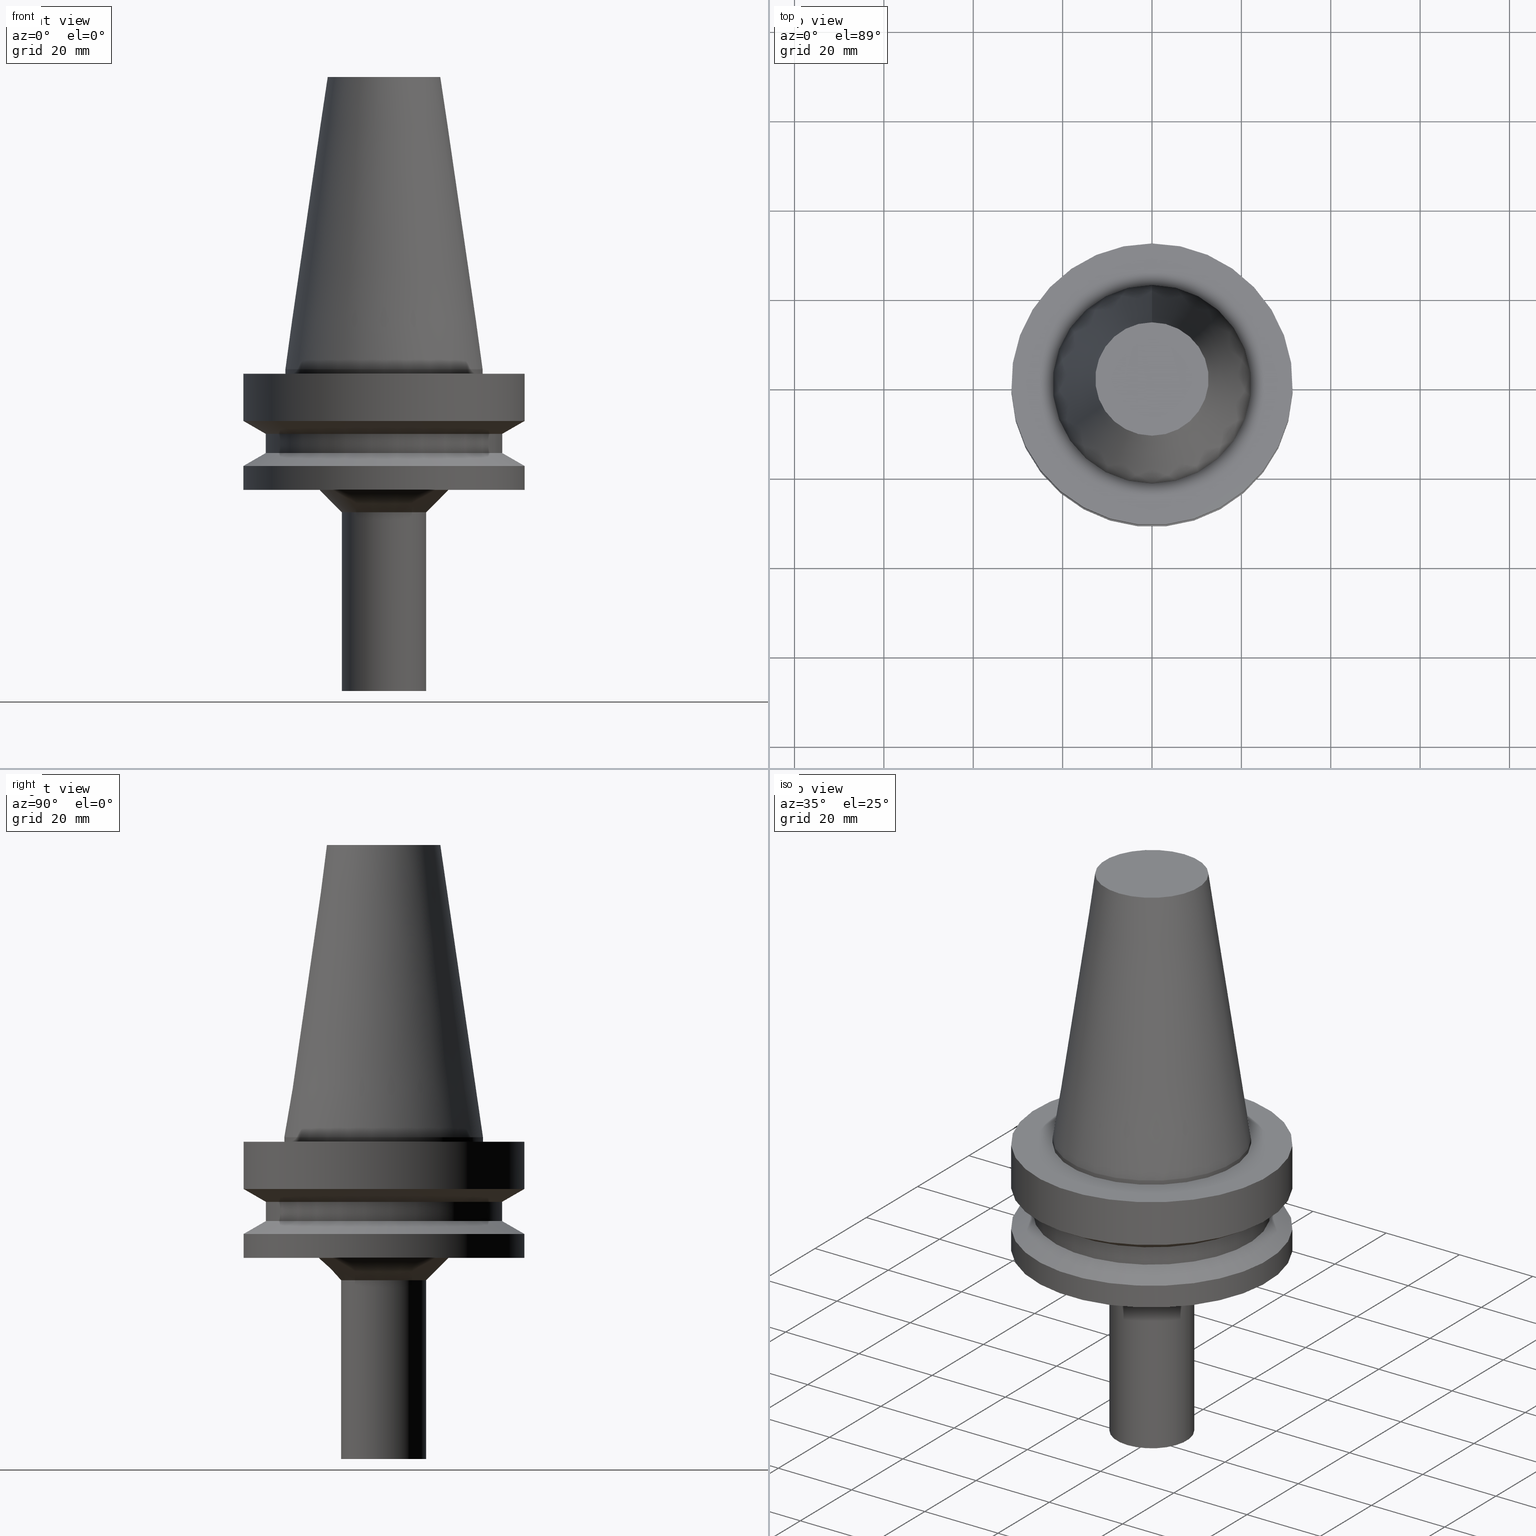
[diagram: canonical four-view strip — front | top / right | iso, engineering-drawing reading convention]
A machine part, canonical four-view strip (front | top / right | iso — engineering-drawing reading convention). The complete STEP part file that produces these views, byte-faithful:
ISO-10303-21;
HEADER;
FILE_DESCRIPTION((''),'1');
FILE_NAME('U:/Translate/21_DXF\X2\30C730FC30BF4F5C621057FA6E96\X0\/BBT40-CK1-105.stp','2016-12-09T00:20:59',(''),(''),'Spatial Interop R21 SP3','Kubotek KeyCreator 2011 V10.0.2 (22737)',' ');
FILE_SCHEMA(('automotive_design'));
ENDSEC;
DATA;
#1=MECHANICAL_DESIGN_GEOMETRIC_PRESENTATION_REPRESENTATION(' ',(#10,#11,#12,#13,#14,#15,#16,#17,#18,#19,#20,#21,#22,#23,#24,#25,#26,#27,#28,#29,#30,#31,#32,#33,#34,#35),#6);
#2=PRODUCT_DEFINITION_CONTEXT('',#36,'design');
#3=APPLICATION_PROTOCOL_DEFINITION('INTERNATIONAL STANDARD','automotive_design',1994,#36);
#4=PRODUCT_CATEGORY_RELATIONSHIP('NONE','NONE',#37,#38);
#5=SHAPE_DEFINITION_REPRESENTATION(#39,#40);
#6= (GEOMETRIC_REPRESENTATION_CONTEXT(3)GLOBAL_UNCERTAINTY_ASSIGNED_CONTEXT((#43))GLOBAL_UNIT_ASSIGNED_CONTEXT((#45,#46,#47))REPRESENTATION_CONTEXT('NONE','WORKSPACE'));
#10=STYLED_ITEM('',(#49,#50),#51);
#11=STYLED_ITEM('',(#52,#53),#54);
#12=STYLED_ITEM('',(#55),#56);
#13=STYLED_ITEM('',(#57),#58);
#14=STYLED_ITEM('',(#59),#60);
#15=STYLED_ITEM('',(#61,#62),#63);
#16=STYLED_ITEM('',(#64),#65);
#17=STYLED_ITEM('',(#66),#67);
#18=STYLED_ITEM('',(#68),#69);
#19=STYLED_ITEM('',(#70,#71),#72);
#20=STYLED_ITEM('',(#73,#74),#75);
#21=STYLED_ITEM('',(#76),#77);
#22=STYLED_ITEM('',(#78,#79),#80);
#23=STYLED_ITEM('',(#81,#82),#83);
#24=STYLED_ITEM('',(#84,#85),#86);
#25=STYLED_ITEM('',(#87),#88);
#26=STYLED_ITEM('',(#89),#90);
#27=STYLED_ITEM('',(#91),#92);
#28=STYLED_ITEM('',(#93,#94),#95);
#29=STYLED_ITEM('',(#96,#97),#98);
#30=STYLED_ITEM('',(#99,#100),#101);
#31=STYLED_ITEM('',(#102,#103),#104);
#32=STYLED_ITEM('',(#105),#106);
#33=STYLED_ITEM('',(#107),#108);
#34=STYLED_ITEM('',(#109,#110),#111);
#35=STYLED_ITEM('',(#112,#113),#114);
#36=APPLICATION_CONTEXT(' ');
#37=PRODUCT_CATEGORY('part','NONE');
#38=PRODUCT_RELATED_PRODUCT_CATEGORY('detail',' ',(#115));
#39=PRODUCT_DEFINITION_SHAPE('NONE','NONE',#116);
#40=ADVANCED_BREP_SHAPE_REPRESENTATION('Unnamed[1]',(#80,#117),#6);
#43=UNCERTAINTY_MEASURE_WITH_UNIT(LENGTH_MEASURE(1.0E-006),#45,'','');
#45= (CONVERSION_BASED_UNIT('MILLIMETRE',#120)LENGTH_UNIT()NAMED_UNIT(#123));
#46= (NAMED_UNIT(#125)PLANE_ANGLE_UNIT()SI_UNIT($,.RADIAN.));
#47= (NAMED_UNIT(#125)SOLID_ANGLE_UNIT()SI_UNIT($,.STERADIAN.));
#49=PRESENTATION_STYLE_ASSIGNMENT((#131));
#50=PRESENTATION_STYLE_ASSIGNMENT((#132));
#51=ADVANCED_FACE('Unnamed[1]',(#133,#134),#135,.T.);
#52=PRESENTATION_STYLE_ASSIGNMENT((#136));
#53=PRESENTATION_STYLE_ASSIGNMENT((#137));
#54=ADVANCED_FACE('Unnamed[1]',(#138),#139,.T.);
#55=PRESENTATION_STYLE_ASSIGNMENT((#140));
#56=EDGE_CURVE('Unnamed[1]',#141,#141,#142,.T.);
#57=PRESENTATION_STYLE_ASSIGNMENT((#143));
#58=EDGE_CURVE('Unnamed[1]',#144,#144,#145,.T.);
#59=PRESENTATION_STYLE_ASSIGNMENT((#146));
#60=EDGE_CURVE('Unnamed[1]',#147,#147,#148,.T.);
#61=PRESENTATION_STYLE_ASSIGNMENT((#149));
#62=PRESENTATION_STYLE_ASSIGNMENT((#150));
#63=ADVANCED_FACE('Unnamed[1]',(#151,#152),#153,.T.);
#64=PRESENTATION_STYLE_ASSIGNMENT((#154));
#65=EDGE_CURVE('Unnamed[1]',#155,#155,#156,.T.);
#66=PRESENTATION_STYLE_ASSIGNMENT((#157));
#67=EDGE_CURVE('Unnamed[1]',#158,#158,#159,.T.);
#68=PRESENTATION_STYLE_ASSIGNMENT((#160));
#69=EDGE_CURVE('Unnamed[1]',#161,#161,#162,.T.);
#70=PRESENTATION_STYLE_ASSIGNMENT((#163));
#71=PRESENTATION_STYLE_ASSIGNMENT((#164));
#72=ADVANCED_FACE('Unnamed[1]',(#165,#166),#167,.T.);
#73=PRESENTATION_STYLE_ASSIGNMENT((#168));
#74=PRESENTATION_STYLE_ASSIGNMENT((#169));
#75=ADVANCED_FACE('Unnamed[1]',(#170,#171),#172,.T.);
#76=PRESENTATION_STYLE_ASSIGNMENT((#173));
#77=EDGE_CURVE('Unnamed[1]',#174,#174,#175,.T.);
#78=PRESENTATION_STYLE_ASSIGNMENT((#176));
#79=PRESENTATION_STYLE_ASSIGNMENT((#177));
#80=MANIFOLD_SOLID_BREP('Unnamed[1]',#178);
#81=PRESENTATION_STYLE_ASSIGNMENT((#179));
#82=PRESENTATION_STYLE_ASSIGNMENT((#180));
#83=ADVANCED_FACE('Unnamed[1]',(#181),#182,.T.);
#84=PRESENTATION_STYLE_ASSIGNMENT((#183));
#85=PRESENTATION_STYLE_ASSIGNMENT((#184));
#86=ADVANCED_FACE('Unnamed[1]',(#185,#186),#187,.T.);
#87=PRESENTATION_STYLE_ASSIGNMENT((#188));
#88=EDGE_CURVE('Unnamed[1]',#189,#189,#190,.T.);
#89=PRESENTATION_STYLE_ASSIGNMENT((#191));
#90=EDGE_CURVE('Unnamed[1]',#192,#192,#193,.T.);
#91=PRESENTATION_STYLE_ASSIGNMENT((#194));
#92=EDGE_CURVE('Unnamed[1]',#195,#195,#196,.T.);
#93=PRESENTATION_STYLE_ASSIGNMENT((#197));
#94=PRESENTATION_STYLE_ASSIGNMENT((#198));
#95=ADVANCED_FACE('Unnamed[1]',(#199,#200),#201,.T.);
#96=PRESENTATION_STYLE_ASSIGNMENT((#202));
#97=PRESENTATION_STYLE_ASSIGNMENT((#203));
#98=ADVANCED_FACE('Unnamed[1]',(#204,#205),#206,.T.);
#99=PRESENTATION_STYLE_ASSIGNMENT((#207));
#100=PRESENTATION_STYLE_ASSIGNMENT((#208));
#101=ADVANCED_FACE('Unnamed[1]',(#209,#210),#211,.T.);
#102=PRESENTATION_STYLE_ASSIGNMENT((#212));
#103=PRESENTATION_STYLE_ASSIGNMENT((#213));
#104=ADVANCED_FACE('Unnamed[1]',(#214,#215),#216,.T.);
#105=PRESENTATION_STYLE_ASSIGNMENT((#217));
#106=EDGE_CURVE('Unnamed[1]',#218,#218,#219,.T.);
#107=PRESENTATION_STYLE_ASSIGNMENT((#220));
#108=EDGE_CURVE('Unnamed[1]',#221,#221,#222,.T.);
#109=PRESENTATION_STYLE_ASSIGNMENT((#223));
#110=PRESENTATION_STYLE_ASSIGNMENT((#224));
#111=ADVANCED_FACE('Unnamed[1]',(#225,#226),#227,.T.);
#112=PRESENTATION_STYLE_ASSIGNMENT((#228));
#113=PRESENTATION_STYLE_ASSIGNMENT((#229));
#114=ADVANCED_FACE('Unnamed[1]',(#230,#231),#232,.T.);
#115=PRODUCT('Unnamed[1]','Unnamed[1]','PART-Unnamed[1]-DESC',(#233));
#116=PRODUCT_DEFINITION('NONE','NONE',#234,#2);
#117=AXIS2_PLACEMENT_3D('',#235,#236,#237);
#120=LENGTH_MEASURE_WITH_UNIT(LENGTH_MEASURE(1.0),#238);
#123=DIMENSIONAL_EXPONENTS(1.0,0.0,0.0,0.0,0.0,0.0,0.0);
#125=DIMENSIONAL_EXPONENTS(0.0,0.0,0.0,0.0,0.0,0.0,0.0);
#131=SURFACE_STYLE_USAGE(.BOTH.,#239);
#132=CURVE_STYLE('',#240,POSITIVE_LENGTH_MEASURE(1000.0),#241);
#133=FACE_BOUND('',#242,.T.);
#134=FACE_BOUND('',#243,.T.);
#135=CONICAL_SURFACE('',#244,29.0000000000004,1.04719755119651);
#136=SURFACE_STYLE_USAGE(.BOTH.,#245);
#137=CURVE_STYLE('',#246,POSITIVE_LENGTH_MEASURE(1000.0),#247);
#138=FACE_OUTER_BOUND('',#248,.T.);
#139=PLANE('',#249);
#140=CURVE_STYLE('',#250,POSITIVE_LENGTH_MEASURE(1000.0),#251);
#141=VERTEX_POINT('',#252);
#142=CIRCLE('',#253,26.5);
#143=CURVE_STYLE('',#254,POSITIVE_LENGTH_MEASURE(1000.0),#255);
#144=VERTEX_POINT('',#256);
#145=CIRCLE('',#257,14.5);
#146=CURVE_STYLE('',#258,POSITIVE_LENGTH_MEASURE(1000.0),#259);
#147=VERTEX_POINT('',#260);
#148=CIRCLE('',#261,22.225);
#149=SURFACE_STYLE_USAGE(.BOTH.,#262);
#150=CURVE_STYLE('',#263,POSITIVE_LENGTH_MEASURE(1000.0),#264);
#151=FACE_BOUND('',#265,.T.);
#152=FACE_BOUND('',#266,.T.);
#153=CYLINDRICAL_SURFACE('',#267,26.4999999999997);
#154=CURVE_STYLE('',#268,POSITIVE_LENGTH_MEASURE(1000.0),#269);
#155=VERTEX_POINT('',#270);
#156=CIRCLE('',#271,26.4999999999994);
#157=CURVE_STYLE('',#272,POSITIVE_LENGTH_MEASURE(1000.0),#273);
#158=VERTEX_POINT('',#274);
#159=CIRCLE('',#275,9.50000000000002);
#160=CURVE_STYLE('',#276,POSITIVE_LENGTH_MEASURE(1000.0),#277);
#161=VERTEX_POINT('',#278);
#162=CIRCLE('',#279,31.5000000000004);
#163=SURFACE_STYLE_USAGE(.BOTH.,#280);
#164=CURVE_STYLE('',#281,POSITIVE_LENGTH_MEASURE(1000.0),#282);
#165=FACE_BOUND('',#283,.T.);
#166=FACE_BOUND('',#284,.T.);
#167=CYLINDRICAL_SURFACE('',#285,31.5000000000005);
#168=SURFACE_STYLE_USAGE(.BOTH.,#286);
#169=CURVE_STYLE('',#287,POSITIVE_LENGTH_MEASURE(1000.0),#288);
#170=FACE_BOUND('',#289,.T.);
#171=FACE_BOUND('',#290,.T.);
#172=CYLINDRICAL_SURFACE('',#291,22.225);
#173=CURVE_STYLE('',#292,POSITIVE_LENGTH_MEASURE(1000.0),#293);
#174=VERTEX_POINT('',#294);
#175=CIRCLE('',#295,31.5000000000004);
#176=SURFACE_STYLE_USAGE(.BOTH.,#296);
#177=CURVE_STYLE('',#297,POSITIVE_LENGTH_MEASURE(1000.0),#298);
#178=CLOSED_SHELL('',(#83,#98,#75,#111,#86,#95,#63,#51,#72,#101,#104,#114,#54));
#179=SURFACE_STYLE_USAGE(.BOTH.,#299);
#180=CURVE_STYLE('',#300,POSITIVE_LENGTH_MEASURE(1000.0),#301);
#181=FACE_OUTER_BOUND('',#302,.T.);
#182=PLANE('',#303);
#183=SURFACE_STYLE_USAGE(.BOTH.,#304);
#184=CURVE_STYLE('',#305,POSITIVE_LENGTH_MEASURE(1000.0),#306);
#185=FACE_BOUND('',#307,.T.);
#186=FACE_BOUND('',#308,.T.);
#187=CYLINDRICAL_SURFACE('',#309,31.5);
#188=CURVE_STYLE('',#310,POSITIVE_LENGTH_MEASURE(1000.0),#311);
#189=VERTEX_POINT('',#312);
#190=CIRCLE('',#313,12.6875000000001);
#191=CURVE_STYLE('',#314,POSITIVE_LENGTH_MEASURE(1000.0),#315);
#192=VERTEX_POINT('',#316);
#193=CIRCLE('',#317,22.225);
#194=CURVE_STYLE('',#318,POSITIVE_LENGTH_MEASURE(1000.0),#319);
#195=VERTEX_POINT('',#320);
#196=CIRCLE('',#321,9.50000000000006);
#197=SURFACE_STYLE_USAGE(.BOTH.,#322);
#198=CURVE_STYLE('',#323,POSITIVE_LENGTH_MEASURE(1000.0),#324);
#199=FACE_BOUND('',#325,.T.);
#200=FACE_BOUND('',#326,.T.);
#201=CONICAL_SURFACE('',#327,28.9999999999999,1.04719755119657);
#202=SURFACE_STYLE_USAGE(.BOTH.,#328);
#203=CURVE_STYLE('',#329,POSITIVE_LENGTH_MEASURE(1000.0),#330);
#204=FACE_BOUND('',#331,.T.);
#205=FACE_BOUND('',#332,.T.);
#206=CONICAL_SURFACE('',#333,17.4562500000001,0.144812498238936);
#207=SURFACE_STYLE_USAGE(.BOTH.,#334);
#208=CURVE_STYLE('',#335,POSITIVE_LENGTH_MEASURE(1000.0),#336);
#209=FACE_BOUND('',#337,.T.);
#210=FACE_OUTER_BOUND('',#338,.T.);
#211=PLANE('',#339);
#212=SURFACE_STYLE_USAGE(.BOTH.,#340);
#213=CURVE_STYLE('',#341,POSITIVE_LENGTH_MEASURE(1000.0),#342);
#214=FACE_BOUND('',#343,.T.);
#215=FACE_BOUND('',#344,.T.);
#216=CONICAL_SURFACE('',#345,12.0,0.785398163397443);
#217=CURVE_STYLE('',#346,POSITIVE_LENGTH_MEASURE(1000.0),#347);
#218=VERTEX_POINT('',#348);
#219=CIRCLE('',#349,31.4999999999997);
#220=CURVE_STYLE('',#350,POSITIVE_LENGTH_MEASURE(1000.0),#351);
#221=VERTEX_POINT('',#352);
#222=CIRCLE('',#353,31.5000000000007);
#223=SURFACE_STYLE_USAGE(.BOTH.,#354);
#224=CURVE_STYLE('',#355,POSITIVE_LENGTH_MEASURE(1000.0),#356);
#225=FACE_OUTER_BOUND('',#357,.T.);
#226=FACE_BOUND('',#358,.T.);
#227=PLANE('',#359);
#228=SURFACE_STYLE_USAGE(.BOTH.,#360);
#229=CURVE_STYLE('',#361,POSITIVE_LENGTH_MEASURE(1000.0),#362);
#230=FACE_BOUND('',#363,.T.);
#231=FACE_BOUND('',#364,.T.);
#232=CYLINDRICAL_SURFACE('',#365,9.50000000000004);
#233=PRODUCT_CONTEXT('',#36,'mechanical');
#234=PRODUCT_DEFINITION_FORMATION_WITH_SPECIFIED_SOURCE(' ','NONE',#115,.NOT_KNOWN.);
#235=CARTESIAN_POINT('',(0.0,0.0,0.0));
#236=DIRECTION('',(0.0,0.0,1.0));
#237=DIRECTION('',(1.0,0.0,0.0));
#238= (NAMED_UNIT(#123)LENGTH_UNIT()SI_UNIT(.MILLI.,.METRE.));
#239=SURFACE_SIDE_STYLE('',(#367));
#240=DRAUGHTING_PRE_DEFINED_CURVE_FONT('continuous');
#241=COLOUR_RGB('',0.0,1.0,0.0);
#242=EDGE_LOOP('',(#368));
#243=EDGE_LOOP('',(#369));
#244=AXIS2_PLACEMENT_3D('',#370,#371,#372);
#245=SURFACE_SIDE_STYLE('',(#373));
#246=DRAUGHTING_PRE_DEFINED_CURVE_FONT('continuous');
#247=COLOUR_RGB('',0.0,1.0,0.0);
#248=EDGE_LOOP('',(#374));
#249=AXIS2_PLACEMENT_3D('',#375,#376,#377);
#250=DRAUGHTING_PRE_DEFINED_CURVE_FONT('continuous');
#251=COLOUR_RGB('',0.0,1.0,0.0);
#252=CARTESIAN_POINT('',(4.16283518797867E-015,26.5,-18.7477430013855));
#253=AXIS2_PLACEMENT_3D('',#378,#379,#380);
#254=DRAUGHTING_PRE_DEFINED_CURVE_FONT('continuous');
#255=COLOUR_RGB('',0.0,1.0,0.0);
#256=CARTESIAN_POINT('',(5.9952043329758E-015,14.5,-26.9999999999998));
#257=AXIS2_PLACEMENT_3D('',#381,#382,#383);
#258=DRAUGHTING_PRE_DEFINED_CURVE_FONT('continuous');
#259=COLOUR_RGB('',0.0,1.0,0.0);
#260=CARTESIAN_POINT('',(6.29815412038322E-029,22.2250000000001,-2.8153873565375E-013));
#261=AXIS2_PLACEMENT_3D('',#384,#385,#386);
#262=SURFACE_SIDE_STYLE('',(#387));
#263=DRAUGHTING_PRE_DEFINED_CURVE_FONT('continuous');
#264=COLOUR_RGB('',0.0,1.0,0.0);
#265=EDGE_LOOP('',(#388));
#266=EDGE_LOOP('',(#389));
#267=AXIS2_PLACEMENT_3D('',#390,#391,#392);
#268=DRAUGHTING_PRE_DEFINED_CURVE_FONT('continuous');
#269=COLOUR_RGB('',0.0,1.0,0.0);
#270=CARTESIAN_POINT('',(3.20904569553253E-015,26.4999999999995,-14.4522569986152));
#271=AXIS2_PLACEMENT_3D('',#393,#394,#395);
#272=DRAUGHTING_PRE_DEFINED_CURVE_FONT('continuous');
#273=COLOUR_RGB('',0.0,1.0,0.0);
#274=CARTESIAN_POINT('',(7.10542735760096E-015,9.50000000000003,-31.9999999999998));
#275=AXIS2_PLACEMENT_3D('',#396,#397,#398);
#276=DRAUGHTING_PRE_DEFINED_CURVE_FONT('continuous');
#277=COLOUR_RGB('',0.0,1.0,0.0);
#278=CARTESIAN_POINT('',(2.56805813340452E-015,31.5000000000004,-11.5655056526664));
#279=AXIS2_PLACEMENT_3D('',#399,#400,#401);
#280=SURFACE_SIDE_STYLE('',(#402));
#281=DRAUGHTING_PRE_DEFINED_CURVE_FONT('continuous');
#282=COLOUR_RGB('',0.0,1.0,0.0);
#283=EDGE_LOOP('',(#403));
#284=EDGE_LOOP('',(#404));
#285=AXIS2_PLACEMENT_3D('',#405,#406,#407);
#286=SURFACE_SIDE_STYLE('',(#408));
#287=DRAUGHTING_PRE_DEFINED_CURVE_FONT('continuous');
#288=COLOUR_RGB('',0.0,1.0,0.0);
#289=EDGE_LOOP('',(#409));
#290=EDGE_LOOP('',(#410));
#291=AXIS2_PLACEMENT_3D('',#411,#412,#413);
#292=DRAUGHTING_PRE_DEFINED_CURVE_FONT('continuous');
#293=COLOUR_RGB('',0.0,1.0,0.0);
#294=CARTESIAN_POINT('',(5.99520433297579E-015,31.5000000000004,-26.9999999999998));
#295=AXIS2_PLACEMENT_3D('',#414,#415,#416);
#296=SURFACE_SIDE_STYLE('',(#417));
#297=DRAUGHTING_PRE_DEFINED_CURVE_FONT('continuous');
#298=COLOUR_RGB('',0.0,1.0,0.0);
#299=SURFACE_SIDE_STYLE('',(#418));
#300=DRAUGHTING_PRE_DEFINED_CURVE_FONT('continuous');
#301=COLOUR_RGB('',0.0,1.0,0.0);
#302=EDGE_LOOP('',(#419));
#303=AXIS2_PLACEMENT_3D('',#420,#421,#422);
#304=SURFACE_SIDE_STYLE('',(#423));
#305=DRAUGHTING_PRE_DEFINED_CURVE_FONT('continuous');
#306=COLOUR_RGB('',0.0,1.0,0.0);
#307=EDGE_LOOP('',(#424));
#308=EDGE_LOOP('',(#425));
#309=AXIS2_PLACEMENT_3D('',#426,#427,#428);
#310=DRAUGHTING_PRE_DEFINED_CURVE_FONT('continuous');
#311=COLOUR_RGB('',0.0,1.0,0.0);
#312=CARTESIAN_POINT('',(-1.45217171620971E-014,12.6875000000002,65.4000000000001));
#313=AXIS2_PLACEMENT_3D('',#429,#430,#431);
#314=DRAUGHTING_PRE_DEFINED_CURVE_FONT('continuous');
#315=COLOUR_RGB('',0.0,1.0,0.0);
#316=CARTESIAN_POINT('',(2.22044604925012E-016,22.2250000000001,-0.999999999999912));
#317=AXIS2_PLACEMENT_3D('',#432,#433,#434);
#318=DRAUGHTING_PRE_DEFINED_CURVE_FONT('continuous');
#319=COLOUR_RGB('',0.0,1.0,0.0);
#320=CARTESIAN_POINT('',(1.59872115546023E-014,9.50000000000004,-72.0));
#321=AXIS2_PLACEMENT_3D('',#435,#436,#437);
#322=SURFACE_SIDE_STYLE('',(#438));
#323=DRAUGHTING_PRE_DEFINED_CURVE_FONT('continuous');
#324=COLOUR_RGB('',0.0,1.0,0.0);
#325=EDGE_LOOP('',(#439));
#326=EDGE_LOOP('',(#440));
#327=AXIS2_PLACEMENT_3D('',#441,#442,#443);
#328=SURFACE_SIDE_STYLE('',(#444));
#329=DRAUGHTING_PRE_DEFINED_CURVE_FONT('continuous');
#330=COLOUR_RGB('',0.0,1.0,0.0);
#331=EDGE_LOOP('',(#445));
#332=EDGE_LOOP('',(#446));
#333=AXIS2_PLACEMENT_3D('',#447,#448,#449);
#334=SURFACE_SIDE_STYLE('',(#450));
#335=DRAUGHTING_PRE_DEFINED_CURVE_FONT('continuous');
#336=COLOUR_RGB('',0.0,1.0,0.0);
#337=EDGE_LOOP('',(#451));
#338=EDGE_LOOP('',(#452));
#339=AXIS2_PLACEMENT_3D('',#453,#454,#455);
#340=SURFACE_SIDE_STYLE('',(#456));
#341=DRAUGHTING_PRE_DEFINED_CURVE_FONT('continuous');
#342=COLOUR_RGB('',0.0,1.0,0.0);
#343=EDGE_LOOP('',(#457));
#344=EDGE_LOOP('',(#458));
#345=AXIS2_PLACEMENT_3D('',#459,#460,#461);
#346=DRAUGHTING_PRE_DEFINED_CURVE_FONT('continuous');
#347=COLOUR_RGB('',0.0,1.0,0.0);
#348=CARTESIAN_POINT('',(2.22044604924993E-016,31.4999999999997,-0.999999999999825));
#349=AXIS2_PLACEMENT_3D('',#462,#463,#464);
#350=DRAUGHTING_PRE_DEFINED_CURVE_FONT('continuous');
#351=COLOUR_RGB('',0.0,1.0,0.0);
#352=CARTESIAN_POINT('',(4.80382275010674E-015,31.5000000000007,-21.6344943473346));
#353=AXIS2_PLACEMENT_3D('',#465,#466,#467);
#354=SURFACE_SIDE_STYLE('',(#468));
#355=DRAUGHTING_PRE_DEFINED_CURVE_FONT('continuous');
#356=COLOUR_RGB('',0.0,1.0,0.0);
#357=EDGE_LOOP('',(#469));
#358=EDGE_LOOP('',(#470));
#359=AXIS2_PLACEMENT_3D('',#471,#472,#473);
#360=SURFACE_SIDE_STYLE('',(#474));
#361=DRAUGHTING_PRE_DEFINED_CURVE_FONT('continuous');
#362=COLOUR_RGB('',0.0,1.0,0.0);
#363=EDGE_LOOP('',(#475));
#364=EDGE_LOOP('',(#476));
#365=AXIS2_PLACEMENT_3D('',#477,#478,#479);
#367=SURFACE_STYLE_FILL_AREA(#480);
#368=ORIENTED_EDGE('',*,*,#108,.F.);
#369=ORIENTED_EDGE('',*,*,#56,.T.);
#370=CARTESIAN_POINT('',(4.4833289690427E-015,1.7654570425249E-014,-20.1911186743601));
#371=DIRECTION('',(2.22044604925031E-016,-6.87296523471693E-016,-1.0));
#372=DIRECTION('',(1.73640130667518E-031,1.0,-6.87296523471693E-016));
#373=SURFACE_STYLE_FILL_AREA(#481);
#374=ORIENTED_EDGE('',*,*,#92,.T.);
#375=CARTESIAN_POINT('',(1.59872115546023E-014,4.75000000000001,-72.0));
#376=DIRECTION('',(2.22044604925031E-016,1.22464679914735E-016,-1.0));
#377=DIRECTION('',(-6.16297582203915E-033,1.0,1.22464679914735E-016));
#378=CARTESIAN_POINT('',(4.16283518797866E-015,1.8646597507348E-014,-18.7477430013855));
#379=DIRECTION('',(2.22044604925031E-016,-6.87296523471693E-016,-1.0));
#380=DIRECTION('',(1.73640130667518E-031,1.0,-6.87296523471693E-016));
#381=CARTESIAN_POINT('',(5.9952043329758E-015,1.29748499614054E-014,-26.9999999999998));
#382=DIRECTION('',(2.22044604925031E-016,-6.87296523471693E-016,-1.0));
#383=DIRECTION('',(1.73640130667518E-031,1.0,-6.87296523471693E-016));
#384=CARTESIAN_POINT('',(5.99534287967969E-029,3.15318560951408E-014,-2.70006239588838E-013));
#385=DIRECTION('',(2.22044604925031E-016,-6.87296523471693E-016,-1.0));
#386=DIRECTION('',(1.73640130667518E-031,1.0,-6.87296523471693E-016));
#387=SURFACE_STYLE_FILL_AREA(#482);
#388=ORIENTED_EDGE('',*,*,#56,.F.);
#389=ORIENTED_EDGE('',*,*,#65,.T.);
#390=CARTESIAN_POINT('',(3.68594044175559E-015,2.01227338055107E-014,-16.6000000000003));
#391=DIRECTION('',(2.22044604925031E-016,-6.87296523471693E-016,-1.0));
#392=DIRECTION('',(1.73640130667518E-031,1.0,-6.87296523471693E-016));
#393=CARTESIAN_POINT('',(3.20904569553252E-015,2.15988701036734E-014,-14.4522569986152));
#394=DIRECTION('',(2.22044604925031E-016,-6.87296523471693E-016,-1.0));
#395=DIRECTION('',(1.73640130667518E-031,1.0,-6.87296523471693E-016));
#396=CARTESIAN_POINT('',(7.10542735760096E-015,9.53836734404697E-015,-31.9999999999998));
#397=DIRECTION('',(2.22044604925031E-016,-6.87296523471693E-016,-1.0));
#398=DIRECTION('',(1.73640130667518E-031,1.0,-6.87296523471693E-016));
#399=CARTESIAN_POINT('',(2.56805813340451E-015,2.35829242678712E-014,-11.5655056526663));
#400=DIRECTION('',(2.22044604925031E-016,-6.87296523471693E-016,-1.0));
#401=DIRECTION('',(1.73640130667518E-031,1.0,-6.87296523471693E-016));
#402=SURFACE_STYLE_FILL_AREA(#483);
#403=ORIENTED_EDGE('',*,*,#77,.F.);
#404=ORIENTED_EDGE('',*,*,#108,.T.);
#405=CARTESIAN_POINT('',(5.39951354154126E-015,1.48186966522777E-014,-24.3172471736672));
#406=DIRECTION('',(2.22044604925031E-016,-6.87296523471693E-016,-1.0));
#407=DIRECTION('',(1.73640130667518E-031,1.0,-6.87296523471693E-016));
#408=SURFACE_STYLE_FILL_AREA(#484);
#409=ORIENTED_EDGE('',*,*,#90,.F.);
#410=ORIENTED_EDGE('',*,*,#60,.T.);
#411=CARTESIAN_POINT('',(1.11022302462535E-016,3.11882078334051E-014,-0.500000000000085));
#412=DIRECTION('',(2.22044604925031E-016,-6.87296523471693E-016,-1.0));
#413=DIRECTION('',(1.73640130667518E-031,1.0,-6.87296523471693E-016));
#414=CARTESIAN_POINT('',(5.99520433297579E-015,1.29748499614055E-014,-26.9999999999997));
#415=DIRECTION('',(2.22044604925031E-016,-6.87296523471693E-016,-1.0));
#416=DIRECTION('',(1.73640130667518E-031,1.0,-6.87296523471693E-016));
#417=SURFACE_STYLE_FILL_AREA(#485);
#418=SURFACE_STYLE_FILL_AREA(#486);
#419=ORIENTED_EDGE('',*,*,#88,.F.);
#420=CARTESIAN_POINT('',(-1.45217171620971E-014,6.34375000000014,65.4000000000001));
#421=DIRECTION('',(-2.22044604925031E-016,9.97602686800683E-016,1.0));
#422=DIRECTION('',(-2.42541940109706E-031,-1.0,9.97602686800683E-016));
#423=SURFACE_STYLE_FILL_AREA(#487);
#424=ORIENTED_EDGE('',*,*,#69,.F.);
#425=ORIENTED_EDGE('',*,*,#106,.T.);
#426=CARTESIAN_POINT('',(1.39505136916475E-015,2.72137419197704E-014,-6.28275282633307));
#427=DIRECTION('',(2.22044604925031E-016,-6.87296523471693E-016,-1.0));
#428=DIRECTION('',(1.73640130667518E-031,1.0,-6.87296523471693E-016));
#429=CARTESIAN_POINT('',(-1.45217171620971E-014,7.64810487301898E-014,65.4000000000001));
#430=DIRECTION('',(2.22044604925031E-016,-6.87296523471693E-016,-1.0));
#431=DIRECTION('',(1.73640130667518E-031,1.0,-6.87296523471693E-016));
#432=CARTESIAN_POINT('',(2.22044604925009E-016,3.08445595716694E-014,-0.999999999999901));
#433=DIRECTION('',(2.22044604925031E-016,-6.87296523471693E-016,-1.0));
#434=DIRECTION('',(1.73640130667518E-031,1.0,-6.87296523471693E-016));
#435=CARTESIAN_POINT('',(1.59872115546023E-014,-1.79534935948209E-014,-72.0));
#436=DIRECTION('',(2.22044604925031E-016,-6.87296523471693E-016,-1.0));
#437=DIRECTION('',(1.73640130667518E-031,1.0,-6.87296523471693E-016));
#438=SURFACE_STYLE_FILL_AREA(#488);
#439=ORIENTED_EDGE('',*,*,#65,.F.);
#440=ORIENTED_EDGE('',*,*,#69,.T.);
#441=CARTESIAN_POINT('',(2.88855191446852E-015,2.25908971857723E-014,-13.0088813256408));
#442=DIRECTION('',(-2.22044604925031E-016,6.87296523471693E-016,1.0));
#443=DIRECTION('',(1.73640130667518E-031,1.0,-6.87296523471693E-016));
#444=SURFACE_STYLE_FILL_AREA(#489);
#445=ORIENTED_EDGE('',*,*,#60,.F.);
#446=ORIENTED_EDGE('',*,*,#88,.T.);
#447=CARTESIAN_POINT('',(-7.26085858104851E-015,5.40064524126653E-014,32.6999999999999));
#448=DIRECTION('',(2.22044604925031E-016,-6.87296523471693E-016,-1.0));
#449=DIRECTION('',(1.73640130667518E-031,1.0,-6.87296523471693E-016));
#450=SURFACE_STYLE_FILL_AREA(#490);
#451=ORIENTED_EDGE('',*,*,#58,.F.);
#452=ORIENTED_EDGE('',*,*,#77,.T.);
#453=CARTESIAN_POINT('',(5.9952043329758E-015,23.0000000000002,-26.9999999999998));
#454=DIRECTION('',(2.22044604925031E-016,2.63026257083268E-015,-1.0));
#455=DIRECTION('',(-5.63005967742741E-031,1.0,2.63026257083268E-015));
#456=SURFACE_STYLE_FILL_AREA(#491);
#457=ORIENTED_EDGE('',*,*,#67,.F.);
#458=ORIENTED_EDGE('',*,*,#58,.T.);
#459=CARTESIAN_POINT('',(6.55031584528838E-015,1.12566086527262E-014,-29.4999999999998));
#460=DIRECTION('',(-2.22044604925031E-016,6.87296523471693E-016,1.0));
#461=DIRECTION('',(1.73640130667518E-031,1.0,-6.87296523471693E-016));
#462=CARTESIAN_POINT('',(2.22044604924987E-016,3.08445595716695E-014,-0.999999999999801));
#463=DIRECTION('',(2.22044604925031E-016,-6.87296523471693E-016,-1.0));
#464=DIRECTION('',(1.73640130667518E-031,1.0,-6.87296523471693E-016));
#465=CARTESIAN_POINT('',(4.80382275010674E-015,1.66625433431499E-014,-21.6344943473346));
#466=DIRECTION('',(2.22044604925031E-016,-6.87296523471693E-016,-1.0));
#467=DIRECTION('',(1.73640130667518E-031,1.0,-6.87296523471693E-016));
#468=SURFACE_STYLE_FILL_AREA(#492);
#469=ORIENTED_EDGE('',*,*,#106,.F.);
#470=ORIENTED_EDGE('',*,*,#90,.T.);
#471=CARTESIAN_POINT('',(2.22044604925003E-016,26.8624999999999,-0.999999999999869));
#472=DIRECTION('',(-2.22044604925031E-016,-9.35138060429241E-015,1.0));
#473=DIRECTION('',(2.05539396613681E-030,-1.0,-9.35138060429241E-015));
#474=SURFACE_STYLE_FILL_AREA(#493);
#475=ORIENTED_EDGE('',*,*,#92,.F.);
#476=ORIENTED_EDGE('',*,*,#67,.T.);
#477=CARTESIAN_POINT('',(1.15463194561016E-014,-4.20756312538695E-015,-51.9999999999999));
#478=DIRECTION('',(2.22044604925031E-016,-6.87296523471693E-016,-1.0));
#479=DIRECTION('',(1.73640130667518E-031,1.0,-6.87296523471693E-016));
#480=FILL_AREA_STYLE('',(#494));
#481=FILL_AREA_STYLE('',(#495));
#482=FILL_AREA_STYLE('',(#496));
#483=FILL_AREA_STYLE('',(#497));
#484=FILL_AREA_STYLE('',(#498));
#485=FILL_AREA_STYLE('',(#499));
#486=FILL_AREA_STYLE('',(#500));
#487=FILL_AREA_STYLE('',(#501));
#488=FILL_AREA_STYLE('',(#502));
#489=FILL_AREA_STYLE('',(#503));
#490=FILL_AREA_STYLE('',(#504));
#491=FILL_AREA_STYLE('',(#505));
#492=FILL_AREA_STYLE('',(#506));
#493=FILL_AREA_STYLE('',(#507));
#494=FILL_AREA_STYLE_COLOUR('',#508);
#495=FILL_AREA_STYLE_COLOUR('',#509);
#496=FILL_AREA_STYLE_COLOUR('',#510);
#497=FILL_AREA_STYLE_COLOUR('',#511);
#498=FILL_AREA_STYLE_COLOUR('',#512);
#499=FILL_AREA_STYLE_COLOUR('',#513);
#500=FILL_AREA_STYLE_COLOUR('',#514);
#501=FILL_AREA_STYLE_COLOUR('',#515);
#502=FILL_AREA_STYLE_COLOUR('',#516);
#503=FILL_AREA_STYLE_COLOUR('',#517);
#504=FILL_AREA_STYLE_COLOUR('',#518);
#505=FILL_AREA_STYLE_COLOUR('',#519);
#506=FILL_AREA_STYLE_COLOUR('',#520);
#507=FILL_AREA_STYLE_COLOUR('',#521);
#508=COLOUR_RGB('',0.0,1.0,0.0);
#509=COLOUR_RGB('',0.0,1.0,0.0);
#510=COLOUR_RGB('',0.0,1.0,0.0);
#511=COLOUR_RGB('',0.0,1.0,0.0);
#512=COLOUR_RGB('',0.0,1.0,0.0);
#513=COLOUR_RGB('',0.0,1.0,0.0);
#514=COLOUR_RGB('',0.0,1.0,0.0);
#515=COLOUR_RGB('',0.0,1.0,0.0);
#516=COLOUR_RGB('',0.0,1.0,0.0);
#517=COLOUR_RGB('',0.0,1.0,0.0);
#518=COLOUR_RGB('',0.0,1.0,0.0);
#519=COLOUR_RGB('',0.0,1.0,0.0);
#520=COLOUR_RGB('',0.0,1.0,0.0);
#521=COLOUR_RGB('',0.0,1.0,0.0);
ENDSEC;
END-ISO-10303-21;
